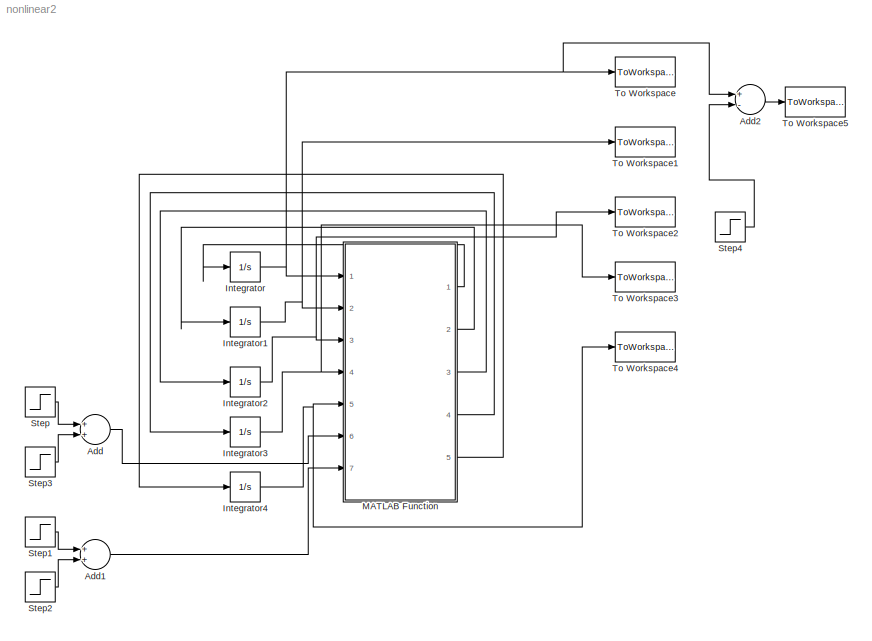
MODEL nonlinear2
KIND model
BLOCK [Sum] Add
  InputSameDT = off
  OutDataTypeStr = Inherit: Inherit via internal rule
  Ports = [2, 1]
  SID = 16
  SaturateOnIntegerOverflow = off
BLOCK [Sum] Add1
  InputSameDT = off
  OutDataTypeStr = Inherit: Inherit via internal rule
  Ports = [2, 1]
  SID = 17
  SaturateOnIntegerOverflow = off
BLOCK [Sum] Add2
  InputSameDT = off
  Inputs = +-
  OutDataTypeStr = Inherit: Inherit via internal rule
  Ports = [2, 1]
  SID = 20
  SaturateOnIntegerOverflow = off
BLOCK [Integrator] Integrator
  InitialCondition = w_r1
  Ports = [1, 1]
  SID = 1
BLOCK [Integrator] Integrator1
  InitialCondition = w_g1
  Ports = [1, 1]
  SID = 2
BLOCK [Integrator] Integrator2
  InitialCondition = S1
  Ports = [1, 1]
  SID = 3
BLOCK [Integrator] Integrator3
  InitialCondition = Teta1
  Ports = [1, 1]
  SID = 4
BLOCK [Integrator] Integrator4
  InitialCondition = T_g1
  Ports = [1, 1]
  SID = 5
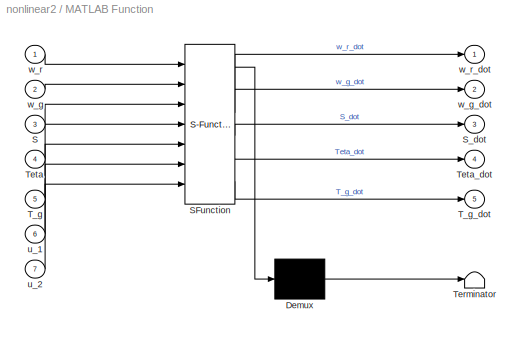
BLOCK [SubSystem] MATLAB Function
  ErrorFcn = Stateflow.Translate.translate
  PermitHierarchicalResolution = ExplicitOnly
  Ports = [7, 5]
  RequestExecContextInheritance = off
  SFBlockType = MATLAB Function
  SID = 6
  TreatAsAtomicUnit = on
  Variant = off
BLOCK [Demux] MATLAB Function/ Demux 
  Outputs = 1
  Ports = [1, 1]
  SID = 6::30
BLOCK [S-Function] MATLAB Function/ SFunction 
  EnableBusSupport = on
  FunctionName = sf_sfun
  PortCounts = [7 6]
  Ports = [7, 6]
  SFunctionDeploymentMode = off
  SID = 6::29
  Tag = Stateflow S-Function nonlinear2 2
BLOCK [Terminator] MATLAB Function/ Terminator 
  SID = 6::31
BLOCK [Inport] MATLAB Function/S
  IconDisplay = Port number
  Port = 3
  SID = 6::20
BLOCK [Outport] MATLAB Function/S_dot
  IconDisplay = Port number
  Port = 3
  SID = 6::26
BLOCK [Inport] MATLAB Function/T_g
  IconDisplay = Port number
  Port = 5
  SID = 6::22
BLOCK [Outport] MATLAB Function/T_g_dot
  IconDisplay = Port number
  Port = 5
  SID = 6::28
BLOCK [Inport] MATLAB Function/Teta
  IconDisplay = Port number
  Port = 4
  SID = 6::21
BLOCK [Outport] MATLAB Function/Teta_dot
  IconDisplay = Port number
  Port = 4
  SID = 6::27
BLOCK [Inport] MATLAB Function/u_1
  IconDisplay = Port number
  Port = 6
  SID = 6::23
BLOCK [Inport] MATLAB Function/u_2
  IconDisplay = Port number
  Port = 7
  SID = 6::24
BLOCK [Inport] MATLAB Function/w_g
  IconDisplay = Port number
  Port = 2
  SID = 6::19
BLOCK [Outport] MATLAB Function/w_g_dot
  IconDisplay = Port number
  Port = 2
  SID = 6::25
BLOCK [Inport] MATLAB Function/w_r
  IconDisplay = Port number
  SID = 6::1
BLOCK [Outport] MATLAB Function/w_r_dot
  IconDisplay = Port number
  SID = 6::5
BLOCK [Step] Step
  After = u1
  SID = 7
  SampleTime = 0
  Time = 0
BLOCK [Step] Step1
  After = u2
  SID = 8
  SampleTime = 0
  Time = 0
BLOCK [Step] Step2
  After = u22
  SID = 14
  SampleTime = 0
  Time = 0
BLOCK [Step] Step3
  After = u11
  SID = 15
  SampleTime = 0
  Time = 0
BLOCK [Step] Step4
  After = 0.072676784965328
  SID = 19
  SampleTime = 0
  Time = 0
BLOCK [ToWorkspace] To Workspace
  FixptAsFi = on
  MaxDataPoints = inf
  Ports = [1]
  SID = 9
  SampleTime = -1
  Save2DSignal = 3-D array (concatenate along third dimension)
  VariableName = w_r
BLOCK [ToWorkspace] To Workspace1
  FixptAsFi = on
  MaxDataPoints = inf
  Ports = [1]
  SID = 10
  SampleTime = -1
  Save2DSignal = 3-D array (concatenate along third dimension)
  VariableName = w_g
BLOCK [ToWorkspace] To Workspace2
  FixptAsFi = on
  MaxDataPoints = inf
  Ports = [1]
  SID = 11
  SampleTime = -1
  Save2DSignal = 3-D array (concatenate along third dimension)
  VariableName = S
BLOCK [ToWorkspace] To Workspace3
  FixptAsFi = on
  MaxDataPoints = inf
  Ports = [1]
  SID = 12
  SampleTime = -1
  Save2DSignal = 3-D array (concatenate along third dimension)
  VariableName = Teta
BLOCK [ToWorkspace] To Workspace4
  FixptAsFi = on
  MaxDataPoints = inf
  Ports = [1]
  SID = 13
  SampleTime = -1
  Save2DSignal = 3-D array (concatenate along third dimension)
  VariableName = T_g
BLOCK [ToWorkspace] To Workspace5
  FixptAsFi = on
  MaxDataPoints = inf
  Ports = [1]
  SID = 18
  SampleTime = -1
  Save2DSignal = 3-D array (concatenate along third dimension)
  VariableName = y
LINE Add1:1 -> MATLAB Function:7
LINE Add2:1 -> To Workspace5:1
LINE Add:1 -> MATLAB Function:6
NET Integrator1:1 -> MATLAB Function:2, To Workspace1:1
NET Integrator2:1 -> MATLAB Function:3, To Workspace2:1
NET Integrator3:1 -> MATLAB Function:4, To Workspace3:1
NET Integrator4:1 -> MATLAB Function:5, To Workspace4:1
NET Integrator:1 -> Add2:1, MATLAB Function:1, To Workspace:1
LINE MATLAB Function/ Demux :1 -> MATLAB Function/ Terminator :1
LINE MATLAB Function/ SFunction :1 -> MATLAB Function/ Demux :1
LINE MATLAB Function/ SFunction :2 -> MATLAB Function/w_r_dot:1
LINE MATLAB Function/ SFunction :3 -> MATLAB Function/w_g_dot:1
LINE MATLAB Function/ SFunction :4 -> MATLAB Function/S_dot:1
LINE MATLAB Function/ SFunction :5 -> MATLAB Function/Teta_dot:1
LINE MATLAB Function/ SFunction :6 -> MATLAB Function/T_g_dot:1
LINE MATLAB Function/S:1 -> MATLAB Function/ SFunction :3
LINE MATLAB Function/T_g:1 -> MATLAB Function/ SFunction :5
LINE MATLAB Function/Teta:1 -> MATLAB Function/ SFunction :4
LINE MATLAB Function/u_1:1 -> MATLAB Function/ SFunction :6
LINE MATLAB Function/u_2:1 -> MATLAB Function/ SFunction :7
LINE MATLAB Function/w_g:1 -> MATLAB Function/ SFunction :2
LINE MATLAB Function/w_r:1 -> MATLAB Function/ SFunction :1
LINE MATLAB Function:1 -> Integrator:1
LINE MATLAB Function:2 -> Integrator1:1
LINE MATLAB Function:3 -> Integrator2:1
LINE MATLAB Function:4 -> Integrator3:1
LINE MATLAB Function:5 -> Integrator4:1
LINE Step1:1 -> Add1:1
LINE Step2:1 -> Add1:2
LINE Step3:1 -> Add:2
LINE Step4:1 -> Add2:2
LINE Step:1 -> Add:1
note: NET lines group one-source signal fan-out (src -> all destinations, sorted); 1:1 wires keep LINE
CHART MATLAB Function states=1 transitions=1
  STATE_LABEL 'eML_blk_kernel()'
